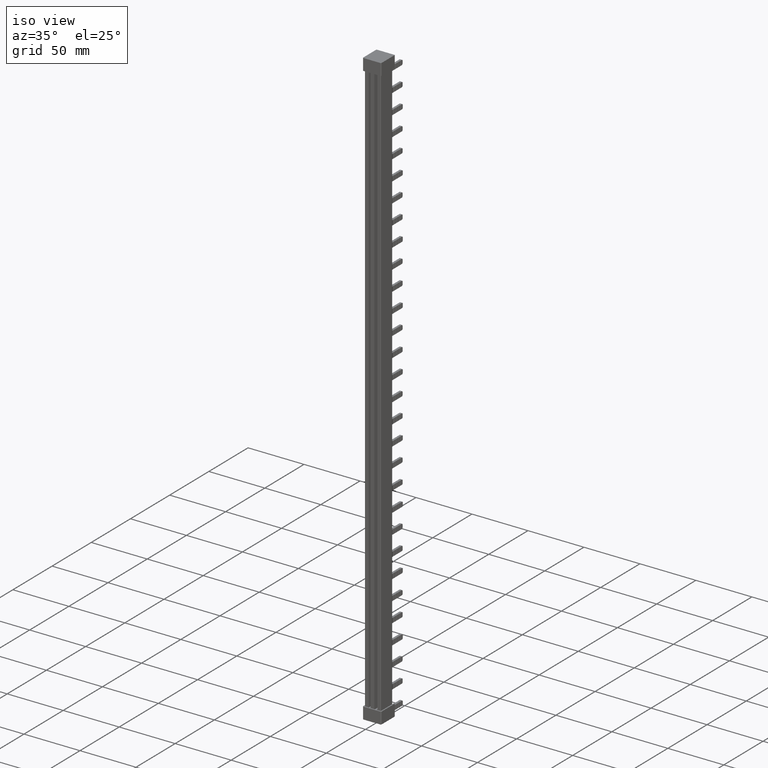
[diagram: clean part render]
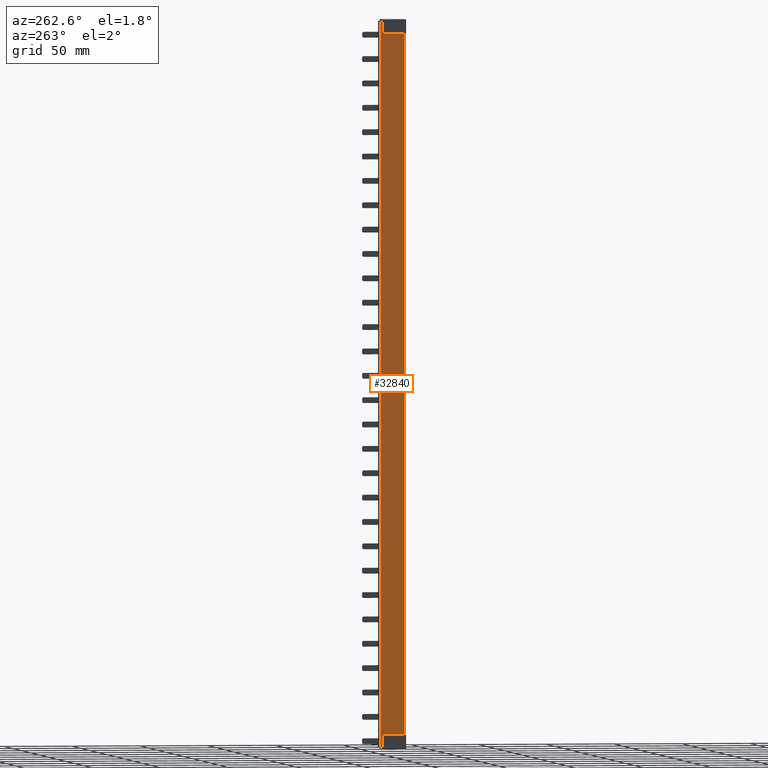
[diagram: tour spotlight — one face highlighted and labeled with its STEP entity id]
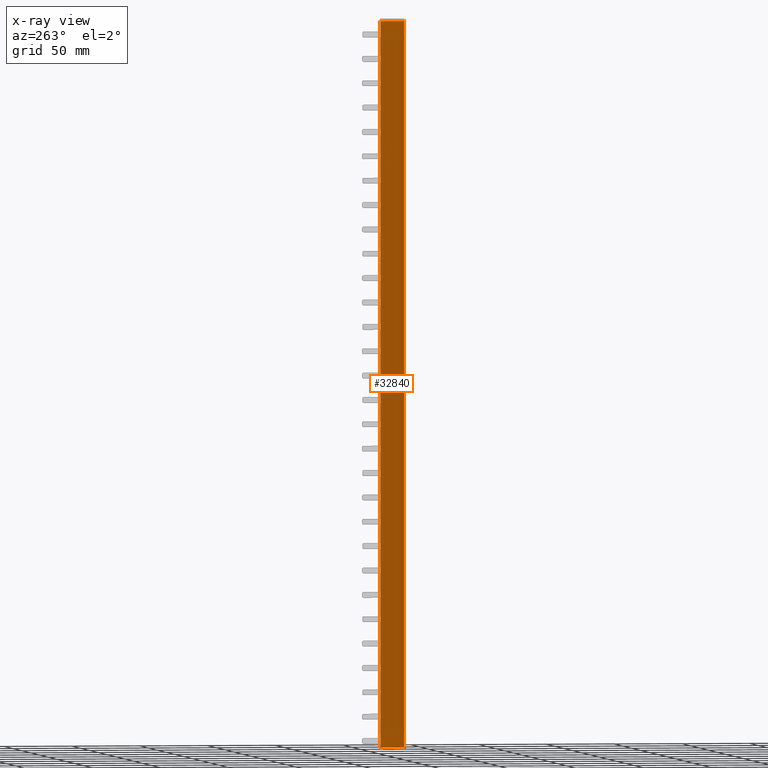
[diagram: x-ray of the same camera — body ghosted, this tour face saturated]
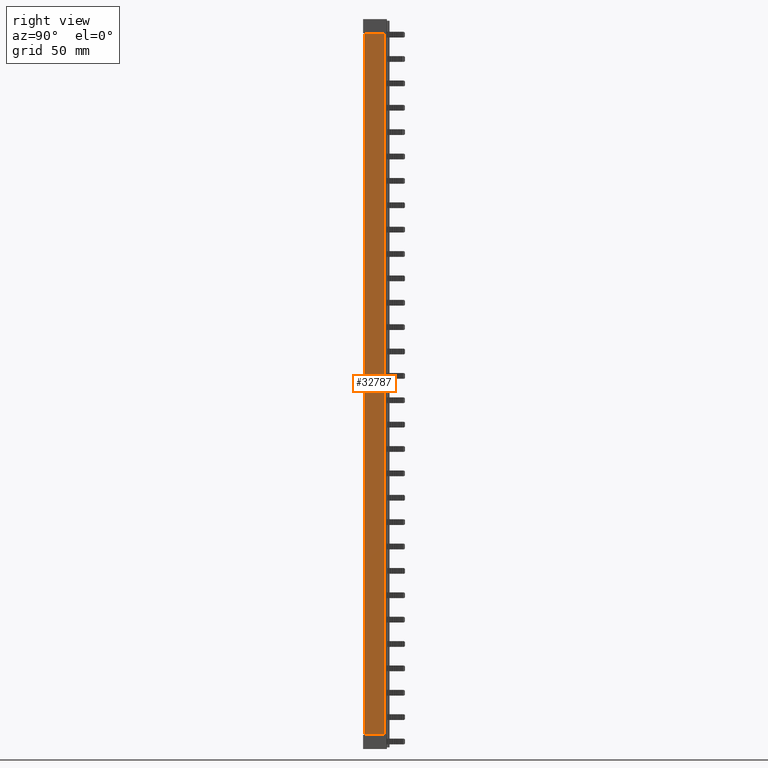
[diagram: tour spotlight — one face highlighted and labeled with its STEP entity id]
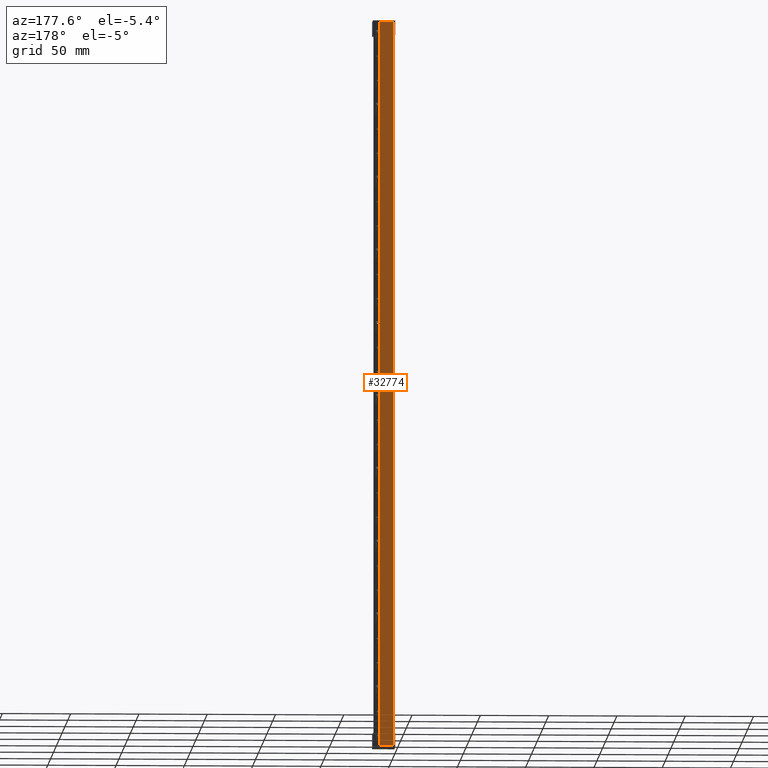
[diagram: tour spotlight — one face highlighted and labeled with its STEP entity id]
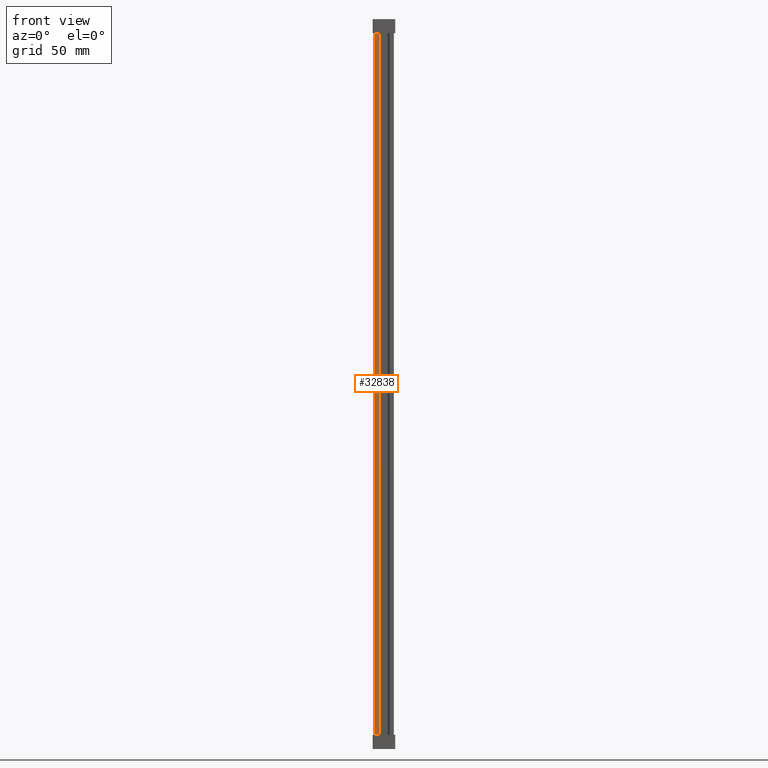
[diagram: tour spotlight — one face highlighted and labeled with its STEP entity id]
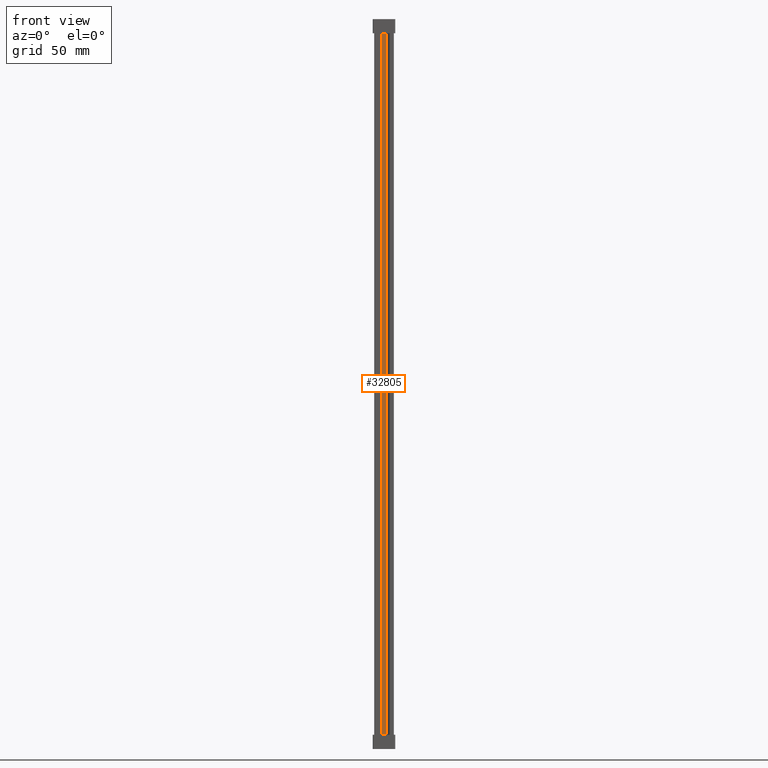
[diagram: tour spotlight — one face highlighted and labeled with its STEP entity id]
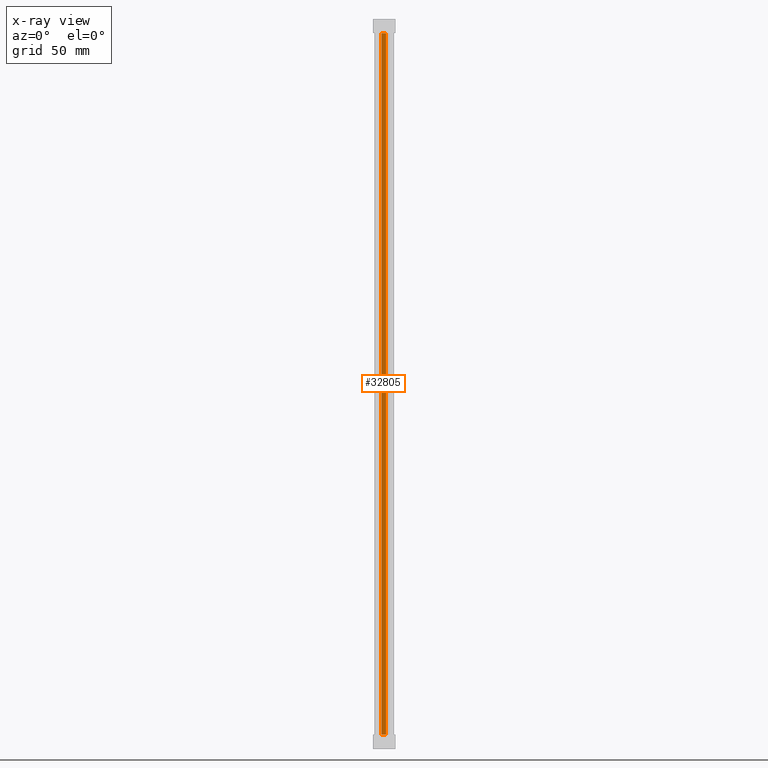
[diagram: x-ray of the same camera — body ghosted, this tour face saturated]
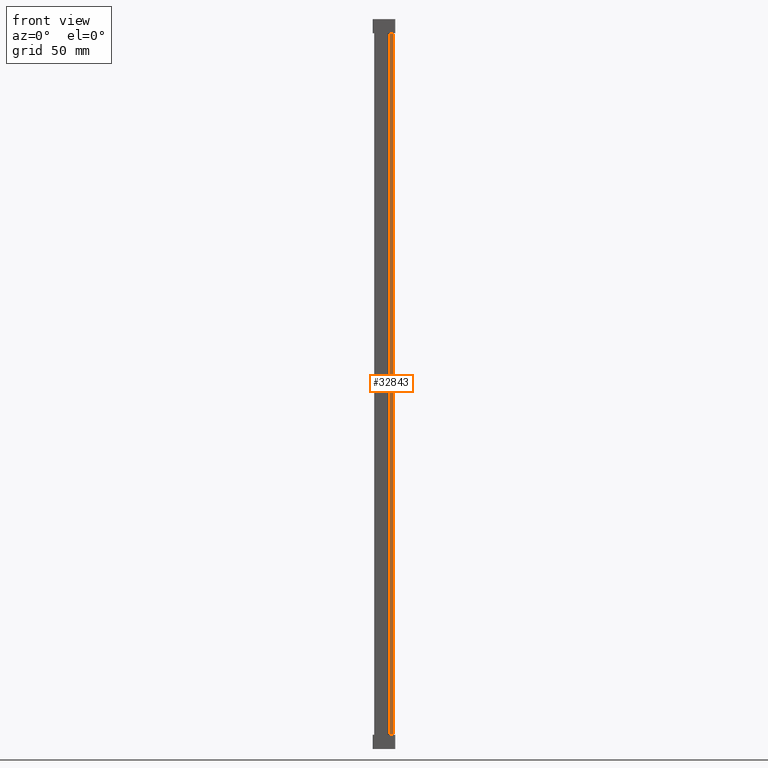
[diagram: tour spotlight — one face highlighted and labeled with its STEP entity id]
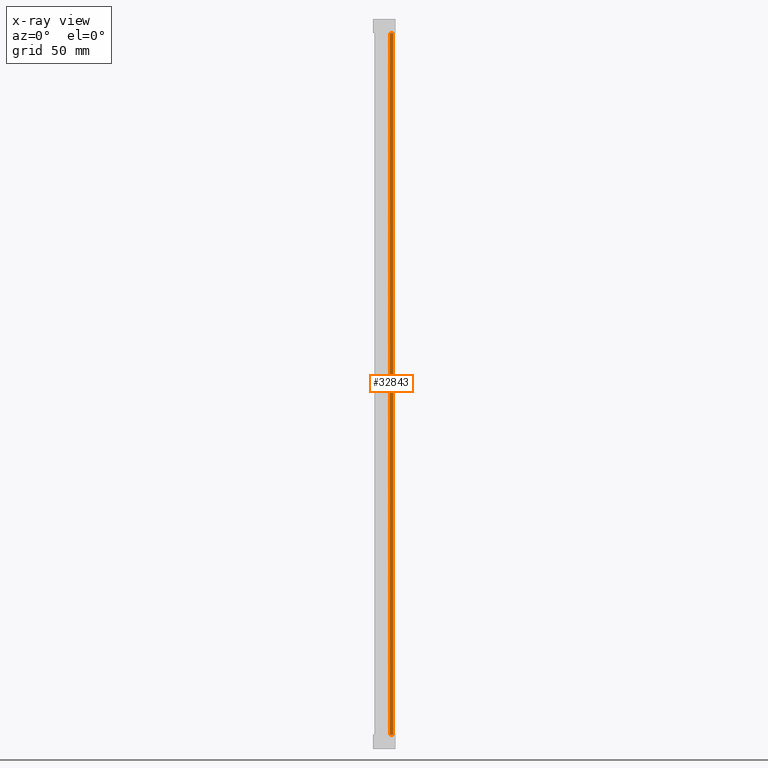
[diagram: x-ray of the same camera — body ghosted, this tour face saturated]
A machine part: a face-by-face anatomy tour. The part has 1636 B-rep faces; the first image is the clean iso view, then the 6 largest visible faces are spotlighted one at a time (largest first), each with its STEP entity span.

Face 1 — auxiliary view, entity #32840. An x-ray twin of the same camera follows (body ghosted, this face saturated) — the face is partly hidden behind the body. In plain terms, the highlighted planar face has unit normal (-1, 0, 0).
Definition (entity closure, byte-faithful):
#871 = LINE ( 'NONE', #40070, #45095 ) ;
#2788 = LINE ( 'NONE', #2810, #42421 ) ;
#2810 = CARTESIAN_POINT ( 'NONE',  ( -0.6240000000000562900, 0.5000000000000004400, 219.0000000000000000 ) ) ;
#2817 = DIRECTION ( 'NONE',  ( 0.0000000000000000000, 0.0000000000000000000, 1.000000000000000000 ) ) ;
#3083 = LINE ( 'NONE', #3089, #42574 ) ;
#3085 = DIRECTION ( 'NONE',  ( 1.604368532695314200E-015, 1.000000000000000000, -7.966447793083854200E-028 ) ) ;
#3089 = CARTESIAN_POINT ( 'NONE',  ( -0.6240000000000715000, -9.057104323749680200, -313.8598036526178700 ) ) ;
#5007 = DIRECTION ( 'NONE',  ( 0.0000000000000000000, 1.000000000000000000, 0.0000000000000000000 ) ) ;
#5008 = DIRECTION ( 'NONE',  ( -1.604368532695314200E-015, -1.000000000000000000, 0.0000000000000000000 ) ) ;
#5009 = CARTESIAN_POINT ( 'NONE',  ( -0.6240000000000285300, 17.79999999999998600, 219.0000000000000000 ) ) ;
#5012 = CARTESIAN_POINT ( 'NONE',  ( -0.6240000000000411900, 1.249999999999640300, 217.7999999999999800 ) ) ;
#5031 = LINE ( 'NONE', #5032, #45169 ) ;
#5032 = CARTESIAN_POINT ( 'NONE',  ( -0.6240000000000715000, -9.057104323749680200, -313.8000000000589000 ) ) ;
#5034 = LINE ( 'NONE', #5009, #45170 ) ;
#5039 = DIRECTION ( 'NONE',  ( -0.0000000000000000000, -0.0000000000000000000, -1.000000000000000000 ) ) ;
#5043 = LINE ( 'NONE', #5012, #45166 ) ;
#5068 = LINE ( 'NONE', #5086, #45141 ) ;
#5086 = CARTESIAN_POINT ( 'NONE',  ( -0.6240000000000715000, -9.057104323749680200, 217.7999999999999800 ) ) ;
#5091 = DIRECTION ( 'NONE',  ( 1.604368532695314200E-015, 1.000000000000000000, -0.0000000000000000000 ) ) ;
#9501 = CARTESIAN_POINT ( 'NONE',  ( -0.6240000000000348600, 17.79999999999998600, 217.7999999999999800 ) ) ;
#10593 = CARTESIAN_POINT ( 'NONE',  ( -0.6240000000000562900, 0.5000000000000008900, -313.8000000000295100 ) ) ;
#10713 = CARTESIAN_POINT ( 'NONE',  ( -0.6240000000000562900, 0.5000000000000008900, 217.7999999999999800 ) ) ;
#10800 = CARTESIAN_POINT ( 'NONE',  ( -0.6240000000000305300, 16.49999999999970900, -313.8598036526178700 ) ) ;
#10875 = CARTESIAN_POINT ( 'NONE',  ( -0.6240000000000285300, 17.79999999999998600, -313.8598036526178700 ) ) ;
#14648 = EDGE_CURVE ( 'NONE', #41153, #44515, #871, .T. ) ;
#14710 = EDGE_CURVE ( 'NONE', #41313, #31822, #5043, .T. ) ;
#14726 = EDGE_CURVE ( 'NONE', #41153, #44444, #5031, .T. ) ;
#14732 = EDGE_CURVE ( 'NONE', #31822, #44629, #5034, .T. ) ;
#14757 = EDGE_CURVE ( 'NONE', #44468, #41313, #5068, .T. ) ;
#17707 = CARTESIAN_POINT ( 'NONE',  ( -0.6240000000000373000, 16.49999999999971600, -313.8000000000295100 ) ) ;
#17781 = CARTESIAN_POINT ( 'NONE',  ( -0.6240000000000334200, 16.49999999999971600, 217.8000000000145600 ) ) ;
#23805 = DIRECTION ( 'NONE',  ( -1.000000000000000000, 1.604368532695314200E-015, 0.0000000000000000000 ) ) ;
#23809 = PLANE ( 'NONE',  #48287 ) ;
#23821 = DIRECTION ( 'NONE',  ( -1.604368532695314200E-015, -1.000000000000000000, 0.0000000000000000000 ) ) ;
#23853 = FACE_OUTER_BOUND ( 'NONE', #37688, .T. ) ;
#23856 = CARTESIAN_POINT ( 'NONE',  ( -0.6240000000000715000, -9.057104323749680200, 219.0000000000000000 ) ) ;
#31822 = VERTEX_POINT ( 'NONE', #9501 ) ;
#32840 = ADVANCED_FACE ( 'NONE', ( #23853 ), #23809, .T. ) ;
#36608 = ORIENTED_EDGE ( 'NONE', *, *, #50158, .T. ) ;
#36617 = ORIENTED_EDGE ( 'NONE', *, *, #50361, .F. ) ;
#36651 = ORIENTED_EDGE ( 'NONE', *, *, #14726, .T. ) ;
#36660 = ORIENTED_EDGE ( 'NONE', *, *, #14757, .T. ) ;
#36679 = ORIENTED_EDGE ( 'NONE', *, *, #14648, .F. ) ;
#36688 = ORIENTED_EDGE ( 'NONE', *, *, #14710, .T. ) ;
#36704 = ORIENTED_EDGE ( 'NONE', *, *, #14732, .T. ) ;
#37688 = EDGE_LOOP ( 'NONE', ( #36704, #36617, #36679, #36651, #36608, #36660, #36688 ) ) ;
#40036 = DIRECTION ( 'NONE',  ( 0.0000000000000000000, 0.0000000000000000000, -1.000000000000000000 ) ) ;
#40070 = CARTESIAN_POINT ( 'NONE',  ( -0.6240000000000305300, 16.49999999999970900, 219.0000000000000000 ) ) ;
#41153 = VERTEX_POINT ( 'NONE', #17707 ) ;
#41313 = VERTEX_POINT ( 'NONE', #17781 ) ;
#42421 = VECTOR ( 'NONE', #2817, 1000.000000000000000 ) ;
#42574 = VECTOR ( 'NONE', #3085, 1000.000000000000000 ) ;
#44444 = VERTEX_POINT ( 'NONE', #10593 ) ;
#44468 = VERTEX_POINT ( 'NONE', #10713 ) ;
#44515 = VERTEX_POINT ( 'NONE', #10800 ) ;
#44629 = VERTEX_POINT ( 'NONE', #10875 ) ;
#45095 = VECTOR ( 'NONE', #40036, 1000.000000000000000 ) ;
#45141 = VECTOR ( 'NONE', #5091, 1000.000000000000000 ) ;
#45166 = VECTOR ( 'NONE', #5007, 1000.000000000000000 ) ;
#45169 = VECTOR ( 'NONE', #5008, 1000.000000000000000 ) ;
#45170 = VECTOR ( 'NONE', #5039, 1000.000000000000000 ) ;
#48287 = AXIS2_PLACEMENT_3D ( 'NONE', #23856, #23805, #23821 ) ;
#50158 = EDGE_CURVE ( 'NONE', #44444, #44468, #2788, .T. ) ;
#50361 = EDGE_CURVE ( 'NONE', #44515, #44629, #3083, .T. ) ;

Face 2 — right view, entity #32787. In plain terms, the highlighted planar face has unit normal (1, -0, 0).
Definition (entity closure, byte-faithful):
#284 = DIRECTION ( 'NONE',  ( 0.0000000000000000000, 0.0000000000000000000, -1.000000000000000000 ) ) ;
#310 = LINE ( 'NONE', #313, #44748 ) ;
#313 = CARTESIAN_POINT ( 'NONE',  ( 13.67637477970029600, 0.4999999999992788000, 219.0000000000000000 ) ) ;
#818 = DIRECTION ( 'NONE',  ( 0.0000000000000000000, -1.000000000000000000, 0.0000000000000000000 ) ) ;
#829 = CARTESIAN_POINT ( 'NONE',  ( 13.67637477970029600, -9.057104323749694400, -304.6000000000519200 ) ) ;
#838 = LINE ( 'NONE', #829, #45000 ) ;
#1047 = LINE ( 'NONE', #1079, #45075 ) ;
#1075 = DIRECTION ( 'NONE',  ( 0.0000000000000000000, 1.000000000000000000, 0.0000000000000000000 ) ) ;
#1079 = CARTESIAN_POINT ( 'NONE',  ( 13.67637477970029600, -9.057104323749694400, 208.6000000000518100 ) ) ;
#2726 = LINE ( 'NONE', #2747, #42374 ) ;
#2738 = DIRECTION ( 'NONE',  ( -0.0000000000000000000, -0.0000000000000000000, 1.000000000000000000 ) ) ;
#2747 = CARTESIAN_POINT ( 'NONE',  ( 13.67637477970029600, 14.29107189157535500, 219.0000000000000000 ) ) ;
#10719 = CARTESIAN_POINT ( 'NONE',  ( 13.67637477970029600, 14.29107189157535500, 208.6000000000518100 ) ) ;
#10824 = CARTESIAN_POINT ( 'NONE',  ( 13.67637477970029600, 14.29107189157535500, -304.6000000000519200 ) ) ;
#13885 = EDGE_CURVE ( 'NONE', #41059, #41073, #310, .T. ) ;
#14439 = EDGE_CURVE ( 'NONE', #44581, #41073, #838, .T. ) ;
#14573 = EDGE_CURVE ( 'NONE', #41059, #44560, #1047, .T. ) ;
#17612 = CARTESIAN_POINT ( 'NONE',  ( 13.67637477970029600, 0.4999999999992788000, -304.6000000000519200 ) ) ;
#17621 = CARTESIAN_POINT ( 'NONE',  ( 13.67637477970029600, 0.4999999999992788000, 208.6000000000518100 ) ) ;
#23544 = PLANE ( 'NONE',  #48237 ) ;
#23545 = DIRECTION ( 'NONE',  ( 0.0000000000000000000, 0.0000000000000000000, -1.000000000000000000 ) ) ;
#23566 = FACE_OUTER_BOUND ( 'NONE', #37493, .T. ) ;
#23577 = DIRECTION ( 'NONE',  ( 1.000000000000000000, -0.0000000000000000000, 0.0000000000000000000 ) ) ;
#23586 = CARTESIAN_POINT ( 'NONE',  ( 13.67637477970029600, -9.057104323749694400, 219.0000000000000000 ) ) ;
#25261 = ORIENTED_EDGE ( 'NONE', *, *, #14439, .F. ) ;
#25281 = ORIENTED_EDGE ( 'NONE', *, *, #13885, .T. ) ;
#25291 = ORIENTED_EDGE ( 'NONE', *, *, #50143, .T. ) ;
#25311 = ORIENTED_EDGE ( 'NONE', *, *, #14573, .F. ) ;
#32787 = ADVANCED_FACE ( 'NONE', ( #23566 ), #23544, .T. ) ;
#37493 = EDGE_LOOP ( 'NONE', ( #25281, #25261, #25291, #25311 ) ) ;
#41059 = VERTEX_POINT ( 'NONE', #17621 ) ;
#41073 = VERTEX_POINT ( 'NONE', #17612 ) ;
#42374 = VECTOR ( 'NONE', #2738, 1000.000000000000000 ) ;
#44560 = VERTEX_POINT ( 'NONE', #10719 ) ;
#44581 = VERTEX_POINT ( 'NONE', #10824 ) ;
#44748 = VECTOR ( 'NONE', #284, 1000.000000000000000 ) ;
#45000 = VECTOR ( 'NONE', #818, 1000.000000000000000 ) ;
#45075 = VECTOR ( 'NONE', #1075, 1000.000000000000000 ) ;
#48237 = AXIS2_PLACEMENT_3D ( 'NONE', #23586, #23577, #23545 ) ;
#50143 = EDGE_CURVE ( 'NONE', #44581, #44560, #2726, .T. ) ;

Face 3 — auxiliary view, entity #32774. In plain terms, the highlighted planar face has unit normal (0, 1, 0).
Definition (entity closure, byte-faithful):
#815 = CARTESIAN_POINT ( 'NONE',  ( 9.667233284733546500, 18.30000000000001800, 219.0000000000000000 ) ) ;
#816 = LINE ( 'NONE', #815, #45012 ) ;
#887 = DIRECTION ( 'NONE',  ( -0.0000000000000000000, 0.0000000000000000000, -1.000000000000000000 ) ) ;
#2905 = LINE ( 'NONE', #2915, #42481 ) ;
#2915 = CARTESIAN_POINT ( 'NONE',  ( 6.525356090061943200, 18.30000000000001800, -313.8598036526214500 ) ) ;
#2942 = DIRECTION ( 'NONE',  ( 1.000000000000000000, 0.0000000000000000000, -4.965472477636011600E-013 ) ) ;
#5203 = CARTESIAN_POINT ( 'NONE',  ( -0.1240000000000000000, 18.30000000000001500, 219.0000000000000000 ) ) ;
#5206 = LINE ( 'NONE', #5203, #45208 ) ;
#5211 = LINE ( 'NONE', #5212, #45228 ) ;
#5212 = CARTESIAN_POINT ( 'NONE',  ( 6.525356090326534200, 18.30000000000001800, 217.7999999999999800 ) ) ;
#5230 = DIRECTION ( 'NONE',  ( -0.0000000000000000000, -0.0000000000000000000, -1.000000000000000000 ) ) ;
#5231 = DIRECTION ( 'NONE',  ( 1.000000000000000000, 0.0000000000000000000, -0.0000000000000000000 ) ) ;
#9525 = CARTESIAN_POINT ( 'NONE',  ( -0.1239999999999999700, 18.30000000000001800, 217.7999999999999800 ) ) ;
#10855 = CARTESIAN_POINT ( 'NONE',  ( 9.667233284733546500, 18.30000000000001800, -313.8598036526205400 ) ) ;
#10926 = CARTESIAN_POINT ( 'NONE',  ( -0.1240000000000000000, 18.30000000000001500, -313.8598036526183300 ) ) ;
#14463 = EDGE_CURVE ( 'NONE', #41317, #44658, #816, .T. ) ;
#14913 = EDGE_CURVE ( 'NONE', #31793, #44704, #5206, .T. ) ;
#14919 = EDGE_CURVE ( 'NONE', #31793, #41317, #5211, .T. ) ;
#17731 = CARTESIAN_POINT ( 'NONE',  ( 9.667233284733546500, 18.30000000000001800, 217.7999999999999500 ) ) ;
#23485 = FACE_OUTER_BOUND ( 'NONE', #37534, .T. ) ;
#23490 = PLANE ( 'NONE',  #48172 ) ;
#23491 = DIRECTION ( 'NONE',  ( 0.0000000000000000000, -0.0000000000000000000, 1.000000000000000000 ) ) ;
#23510 = CARTESIAN_POINT ( 'NONE',  ( 6.525356090326534200, 18.30000000000001800, 219.0000000000000000 ) ) ;
#23529 = DIRECTION ( 'NONE',  ( 0.0000000000000000000, 1.000000000000000000, 0.0000000000000000000 ) ) ;
#31793 = VERTEX_POINT ( 'NONE', #9525 ) ;
#32774 = ADVANCED_FACE ( 'NONE', ( #23485 ), #23490, .T. ) ;
#36611 = ORIENTED_EDGE ( 'NONE', *, *, #14913, .F. ) ;
#36622 = ORIENTED_EDGE ( 'NONE', *, *, #50258, .F. ) ;
#36631 = ORIENTED_EDGE ( 'NONE', *, *, #14463, .T. ) ;
#37534 = EDGE_LOOP ( 'NONE', ( #36631, #36622, #36611, #47119 ) ) ;
#41317 = VERTEX_POINT ( 'NONE', #17731 ) ;
#42481 = VECTOR ( 'NONE', #2942, 1000.000000000000000 ) ;
#44658 = VERTEX_POINT ( 'NONE', #10855 ) ;
#44704 = VERTEX_POINT ( 'NONE', #10926 ) ;
#45012 = VECTOR ( 'NONE', #887, 1000.000000000000000 ) ;
#45208 = VECTOR ( 'NONE', #5230, 1000.000000000000000 ) ;
#45228 = VECTOR ( 'NONE', #5231, 1000.000000000000000 ) ;
#47119 = ORIENTED_EDGE ( 'NONE', *, *, #14919, .T. ) ;
#48172 = AXIS2_PLACEMENT_3D ( 'NONE', #23510, #23529, #23491 ) ;
#50258 = EDGE_CURVE ( 'NONE', #44704, #44658, #2905, .T. ) ;

Face 4 — front view, entity #32838. In plain terms, the highlighted planar face has unit normal (0, 1, 0).
Definition (entity closure, byte-faithful):
#12 = LINE ( 'NONE', #38, #45052 ) ;
#25 = DIRECTION ( 'NONE',  ( 1.000000000000000000, 0.0000000000000000000, -4.965472477636011600E-013 ) ) ;
#38 = CARTESIAN_POINT ( 'NONE',  ( 6.466000000103465900, 0.0000000000000000000, 208.6000000000553900 ) ) ;
#2872 = CARTESIAN_POINT ( 'NONE',  ( 2.900000000000013700, 0.0000000000000000000, 219.0000000000000000 ) ) ;
#2890 = LINE ( 'NONE', #2872, #42435 ) ;
#2912 = DIRECTION ( 'NONE',  ( -0.0000000000000000000, 0.0000000000000000000, -1.000000000000000000 ) ) ;
#2922 = CARTESIAN_POINT ( 'NONE',  ( -0.1239999999999999000, -2.775557561562891400E-014, 219.0000000000000000 ) ) ;
#2927 = DIRECTION ( 'NONE',  ( 0.0000000000000000000, 0.0000000000000000000, 1.000000000000000000 ) ) ;
#2948 = LINE ( 'NONE', #2922, #42462 ) ;
#4966 = LINE ( 'NONE', #4990, #45059 ) ;
#4984 = DIRECTION ( 'NONE',  ( -1.000000000000000000, 0.0000000000000000000, -4.965472477636011600E-013 ) ) ;
#4990 = CARTESIAN_POINT ( 'NONE',  ( 6.466000000103465900, 0.0000000000000000000, -304.6000000000554500 ) ) ;
#10616 = CARTESIAN_POINT ( 'NONE',  ( -0.1239999999999999300, -1.249000902703301100E-013, 208.6000000000586600 ) ) ;
#10759 = CARTESIAN_POINT ( 'NONE',  ( 2.900000000000013700, 0.0000000000000000000, -304.6000000000572600 ) ) ;
#10794 = CARTESIAN_POINT ( 'NONE',  ( 2.900000000000013700, 0.0000000000000000000, 208.6000000000571500 ) ) ;
#10796 = CARTESIAN_POINT ( 'NONE',  ( -0.1239999999999999300, -1.249000902703301100E-013, -304.6000000000586900 ) ) ;
#14633 = EDGE_CURVE ( 'NONE', #44469, #44508, #12, .T. ) ;
#14669 = EDGE_CURVE ( 'NONE', #44539, #44527, #4966, .T. ) ;
#21677 = ORIENTED_EDGE ( 'NONE', *, *, #14633, .F. ) ;
#23819 = FACE_OUTER_BOUND ( 'NONE', #37588, .T. ) ;
#23824 = DIRECTION ( 'NONE',  ( 0.0000000000000000000, 1.000000000000000000, 0.0000000000000000000 ) ) ;
#23833 = PLANE ( 'NONE',  #48266 ) ;
#23835 = CARTESIAN_POINT ( 'NONE',  ( 6.525356090326534200, 0.0000000000000000000, 219.0000000000000000 ) ) ;
#23851 = DIRECTION ( 'NONE',  ( 0.0000000000000000000, -0.0000000000000000000, 1.000000000000000000 ) ) ;
#32838 = ADVANCED_FACE ( 'NONE', ( #23819 ), #23833, .F. ) ;
#37588 = EDGE_LOOP ( 'NONE', ( #47123, #47109, #47115, #21677 ) ) ;
#42435 = VECTOR ( 'NONE', #2912, 1000.000000000000000 ) ;
#42462 = VECTOR ( 'NONE', #2927, 1000.000000000000000 ) ;
#44469 = VERTEX_POINT ( 'NONE', #10616 ) ;
#44508 = VERTEX_POINT ( 'NONE', #10794 ) ;
#44527 = VERTEX_POINT ( 'NONE', #10796 ) ;
#44539 = VERTEX_POINT ( 'NONE', #10759 ) ;
#45052 = VECTOR ( 'NONE', #25, 1000.000000000000000 ) ;
#45059 = VECTOR ( 'NONE', #4984, 1000.000000000000000 ) ;
#47109 = ORIENTED_EDGE ( 'NONE', *, *, #14669, .F. ) ;
#47115 = ORIENTED_EDGE ( 'NONE', *, *, #50226, .F. ) ;
#47123 = ORIENTED_EDGE ( 'NONE', *, *, #50271, .F. ) ;
#48266 = AXIS2_PLACEMENT_3D ( 'NONE', #23835, #23824, #23851 ) ;
#50226 = EDGE_CURVE ( 'NONE', #44508, #44539, #2890, .T. ) ;
#50271 = EDGE_CURVE ( 'NONE', #44527, #44469, #2948, .T. ) ;

Face 5 — front view, entity #32805. An x-ray twin of the same camera follows (body ghosted, this face saturated) — the face is partly hidden behind the body. In plain terms, the highlighted planar face has unit normal (0, 1, 0).
Definition (entity closure, byte-faithful):
#603 = LINE ( 'NONE', #608, #44872 ) ;
#608 = CARTESIAN_POINT ( 'NONE',  ( 6.466000000103465900, -2.775557561562891400E-013, -304.6000000000554500 ) ) ;
#626 = DIRECTION ( 'NONE',  ( -1.000000000000000000, 0.0000000000000000000, -4.965472477636011600E-013 ) ) ;
#771 = DIRECTION ( 'NONE',  ( 1.000000000000000000, 0.0000000000000000000, -4.965472477636011600E-013 ) ) ;
#784 = LINE ( 'NONE', #804, #44946 ) ;
#804 = CARTESIAN_POINT ( 'NONE',  ( 6.466000000103465900, -2.775557561562891400E-013, 208.6000000000553900 ) ) ;
#2522 = CARTESIAN_POINT ( 'NONE',  ( 4.549999999999910100, -2.775557561562891400E-013, 219.0000000000000000 ) ) ;
#2523 = DIRECTION ( 'NONE',  ( 0.0000000000000000000, -0.0000000000000000000, 1.000000000000000000 ) ) ;
#2528 = LINE ( 'NONE', #2522, #33281 ) ;
#2543 = DIRECTION ( 'NONE',  ( -0.0000000000000000000, 0.0000000000000000000, -1.000000000000000000 ) ) ;
#2552 = LINE ( 'NONE', #2563, #33309 ) ;
#2563 = CARTESIAN_POINT ( 'NONE',  ( 7.950000000000123600, -2.775557561562891400E-013, 219.0000000000000000 ) ) ;
#10709 = CARTESIAN_POINT ( 'NONE',  ( 4.549999999999910100, -2.775557561562891400E-013, 208.6000000000563300 ) ) ;
#10787 = CARTESIAN_POINT ( 'NONE',  ( 4.549999999999910100, -2.775557561562891400E-013, -304.6000000000564100 ) ) ;
#10792 = CARTESIAN_POINT ( 'NONE',  ( 7.950000000000123600, -2.775557561562891400E-013, -304.6000000000547100 ) ) ;
#10798 = CARTESIAN_POINT ( 'NONE',  ( 7.950000000000123600, -2.775557561562891400E-013, 208.6000000000546200 ) ) ;
#14217 = EDGE_CURVE ( 'NONE', #44487, #44488, #603, .T. ) ;
#14395 = EDGE_CURVE ( 'NONE', #44460, #44486, #784, .T. ) ;
#23648 = PLANE ( 'NONE',  #48217 ) ;
#23665 = DIRECTION ( 'NONE',  ( 0.0000000000000000000, -0.0000000000000000000, 1.000000000000000000 ) ) ;
#23678 = FACE_OUTER_BOUND ( 'NONE', #37536, .T. ) ;
#23681 = CARTESIAN_POINT ( 'NONE',  ( 6.525356090326534200, -2.775557561562891400E-013, 219.0000000000000000 ) ) ;
#23697 = DIRECTION ( 'NONE',  ( 0.0000000000000000000, 1.000000000000000000, 0.0000000000000000000 ) ) ;
#25248 = ORIENTED_EDGE ( 'NONE', *, *, #49987, .F. ) ;
#25267 = ORIENTED_EDGE ( 'NONE', *, *, #50002, .F. ) ;
#25317 = ORIENTED_EDGE ( 'NONE', *, *, #14217, .F. ) ;
#25319 = ORIENTED_EDGE ( 'NONE', *, *, #14395, .F. ) ;
#32805 = ADVANCED_FACE ( 'NONE', ( #23678 ), #23648, .F. ) ;
#33281 = VECTOR ( 'NONE', #2523, 1000.000000000000000 ) ;
#33309 = VECTOR ( 'NONE', #2543, 1000.000000000000000 ) ;
#37536 = EDGE_LOOP ( 'NONE', ( #25248, #25317, #25267, #25319 ) ) ;
#44460 = VERTEX_POINT ( 'NONE', #10709 ) ;
#44486 = VERTEX_POINT ( 'NONE', #10798 ) ;
#44487 = VERTEX_POINT ( 'NONE', #10792 ) ;
#44488 = VERTEX_POINT ( 'NONE', #10787 ) ;
#44872 = VECTOR ( 'NONE', #626, 1000.000000000000000 ) ;
#44946 = VECTOR ( 'NONE', #771, 1000.000000000000000 ) ;
#48217 = AXIS2_PLACEMENT_3D ( 'NONE', #23681, #23697, #23665 ) ;
#49987 = EDGE_CURVE ( 'NONE', #44488, #44460, #2528, .T. ) ;
#50002 = EDGE_CURVE ( 'NONE', #44486, #44487, #2552, .T. ) ;

Face 6 — front view, entity #32843. An x-ray twin of the same camera follows (body ghosted, this face saturated) — the face is partly hidden behind the body. In plain terms, the highlighted planar face has unit normal (0, 1, 0).
Definition (entity closure, byte-faithful):
#6 = CARTESIAN_POINT ( 'NONE',  ( 6.466000000103465900, -4.996003610813204400E-013, -304.6000000000554500 ) ) ;
#22 = DIRECTION ( 'NONE',  ( -1.000000000000000000, 0.0000000000000000000, -4.965472477636011600E-013 ) ) ;
#33 = LINE ( 'NONE', #6, #45090 ) ;
#323 = DIRECTION ( 'NONE',  ( -0.0000000000000000000, 0.0000000000000000000, -1.000000000000000000 ) ) ;
#343 = LINE ( 'NONE', #344, #44801 ) ;
#344 = CARTESIAN_POINT ( 'NONE',  ( 13.17637477970035000, -4.996003610813204400E-013, 219.0000000000000000 ) ) ;
#766 = LINE ( 'NONE', #769, #44989 ) ;
#769 = CARTESIAN_POINT ( 'NONE',  ( 6.466000000103465900, -4.996003610813204400E-013, 208.6000000000553900 ) ) ;
#774 = DIRECTION ( 'NONE',  ( 1.000000000000000000, 0.0000000000000000000, -4.965472477636011600E-013 ) ) ;
#2634 = LINE ( 'NONE', #2644, #42411 ) ;
#2644 = CARTESIAN_POINT ( 'NONE',  ( 10.67385165201983800, -4.996003610813204400E-013, 219.0000000000000000 ) ) ;
#2664 = DIRECTION ( 'NONE',  ( 0.0000000000000000000, -0.0000000000000000000, 1.000000000000000000 ) ) ;
#10765 = CARTESIAN_POINT ( 'NONE',  ( 10.67385165201980800, -3.885780586188047900E-013, 208.6000000000532900 ) ) ;
#10769 = CARTESIAN_POINT ( 'NONE',  ( 10.67385165201980800, -3.885780586188047900E-013, -304.6000000000534000 ) ) ;
#13917 = EDGE_CURVE ( 'NONE', #41127, #41051, #343, .T. ) ;
#14415 = EDGE_CURVE ( 'NONE', #44523, #41127, #766, .T. ) ;
#14622 = EDGE_CURVE ( 'NONE', #41051, #44529, #33, .T. ) ;
#17629 = CARTESIAN_POINT ( 'NONE',  ( 13.17637477970035000, -4.996003610813204400E-013, -304.6000000000521500 ) ) ;
#17704 = CARTESIAN_POINT ( 'NONE',  ( 13.17637477970035000, -4.996003610813204400E-013, 208.6000000000520600 ) ) ;
#23825 = PLANE ( 'NONE',  #48279 ) ;
#23861 = CARTESIAN_POINT ( 'NONE',  ( 6.525356090326534200, -4.996003610813204400E-013, 219.0000000000000000 ) ) ;
#23888 = DIRECTION ( 'NONE',  ( 0.0000000000000000000, -0.0000000000000000000, 1.000000000000000000 ) ) ;
#23890 = FACE_OUTER_BOUND ( 'NONE', #37506, .T. ) ;
#23893 = DIRECTION ( 'NONE',  ( 0.0000000000000000000, 1.000000000000000000, 0.0000000000000000000 ) ) ;
#25260 = ORIENTED_EDGE ( 'NONE', *, *, #14415, .F. ) ;
#25277 = ORIENTED_EDGE ( 'NONE', *, *, #13917, .F. ) ;
#25300 = ORIENTED_EDGE ( 'NONE', *, *, #50074, .F. ) ;
#25305 = ORIENTED_EDGE ( 'NONE', *, *, #14622, .F. ) ;
#32843 = ADVANCED_FACE ( 'NONE', ( #23890 ), #23825, .F. ) ;
#37506 = EDGE_LOOP ( 'NONE', ( #25300, #25305, #25277, #25260 ) ) ;
#41051 = VERTEX_POINT ( 'NONE', #17629 ) ;
#41127 = VERTEX_POINT ( 'NONE', #17704 ) ;
#42411 = VECTOR ( 'NONE', #2664, 1000.000000000000000 ) ;
#44523 = VERTEX_POINT ( 'NONE', #10765 ) ;
#44529 = VERTEX_POINT ( 'NONE', #10769 ) ;
#44801 = VECTOR ( 'NONE', #323, 1000.000000000000000 ) ;
#44989 = VECTOR ( 'NONE', #774, 1000.000000000000000 ) ;
#45090 = VECTOR ( 'NONE', #22, 1000.000000000000000 ) ;
#48279 = AXIS2_PLACEMENT_3D ( 'NONE', #23861, #23893, #23888 ) ;
#50074 = EDGE_CURVE ( 'NONE', #44529, #44523, #2634, .T. ) ;